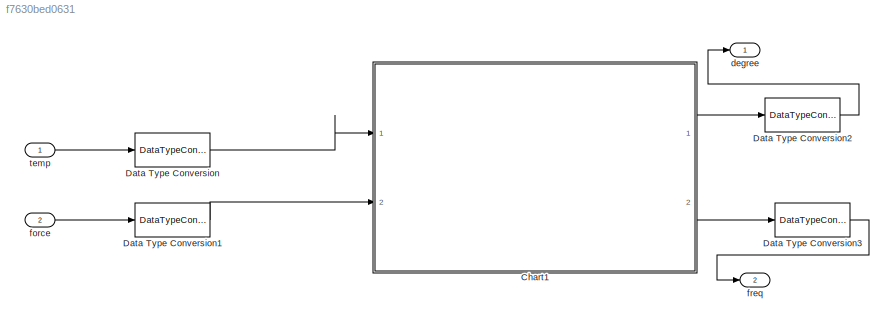
MODEL slx_f7630bed0631
KIND model
CONFIG AbsTol = auto
CONFIG EnableMultiTasking = on
CONFIG FixedStep = 1
CONFIG MaxStep = auto
CONFIG MinStep = auto
CONFIG RelTol = 1e-3
CONFIG SampleTimeConstraint = Unconstrained
CONFIG SolverName = FixedStepDiscrete
CONFIG StartTime = 0.0
CONFIG StopTime = 5
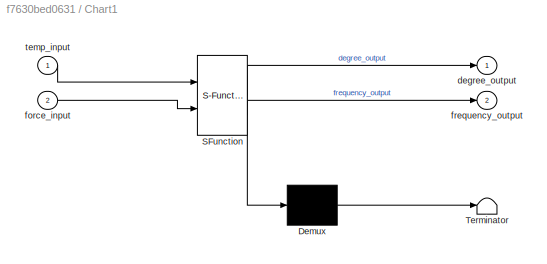
BLOCK [SubSystem] Chart1
  ErrorFcn = Stateflow.Translate.translate
  PermitHierarchicalResolution = ExplicitOnly
  Ports = [2, 2]
  RequestExecContextInheritance = off
  SFBlockType = Chart
  TreatAsAtomicUnit = on
BLOCK [Demux] Chart1/ Demux 
  Outputs = 1
  Ports = [1, 1]
BLOCK [S-Function] Chart1/ SFunction 
  EnableBusSupport = on
  FunctionName = sf_sfun
  PortCounts = [2 3]
  Ports = [2, 3]
  SFcnIsStateOwnerBlock = off
  SFunctionDeploymentMode = off
  Tag = Stateflow S-Function 1
BLOCK [Terminator] Chart1/ Terminator 
BLOCK [Outport] Chart1/degree_output
BLOCK [Inport] Chart1/force_input
  Port = 2
BLOCK [Outport] Chart1/frequency_output
  Port = 2
BLOCK [Inport] Chart1/temp_input
BLOCK [DataTypeConversion] Data Type Conversion
  OutDataTypeStr = fixdt(1,16,4)
  RndMeth = Floor
  SaturateOnIntegerOverflow = off
BLOCK [DataTypeConversion] Data Type Conversion1
  OutDataTypeStr = fixdt(1,16,4)
  RndMeth = Floor
  SaturateOnIntegerOverflow = off
BLOCK [DataTypeConversion] Data Type Conversion2
  OutDataTypeStr = fixdt(1,16,4)
  RndMeth = Floor
  SaturateOnIntegerOverflow = off
BLOCK [DataTypeConversion] Data Type Conversion3
  OutDataTypeStr = fixdt(1,16,10)
  RndMeth = Floor
  SaturateOnIntegerOverflow = off
BLOCK [Outport] degree
BLOCK [Inport] force
  OutDataTypeStr = fixdt(1,16,4)
  Port = 2
BLOCK [Outport] freq
  Port = 2
BLOCK [Inport] temp
  OutDataTypeStr = fixdt(1,16,4)
LINE Chart1:1 -> Data Type Conversion2:1
LINE Chart1:2 -> Data Type Conversion3:1
LINE Data Type Conversion1:1 -> Chart1:2
LINE Data Type Conversion2:1 -> degree:1
LINE Data Type Conversion3:1 -> freq:1
LINE Data Type Conversion:1 -> Chart1:1
LINE force:1 -> Data Type Conversion1:1
LINE temp:1 -> Data Type Conversion:1
CHART Chart1 states=4 transitions=8
  STATE_LABEL 'state2'
  STATE_LABEL 'fsr402\nentry:\n  '
  STATE_LABEL '[timerforce<2]{timerforce = timerforce+1;}'
  STATE_LABEL '[timerforce>=2]{degree_output = (force_input * 18);timerforce =0;}'
  STATE_LABEL 'fsr402\nentry:\n  '
  STATE_LABEL 'state'
  STATE_LABEL 'temp36\n'
  STATE_LABEL '[timertemp<1]{timertemp = timertemp+1;}'
  STATE_LABEL '[timertemp>=1]{frequency_output = (temp_input-20);   timertemp = 0;}'
  STATE_LABEL 'temp36\n'
CHART  states=0 transitions=0
